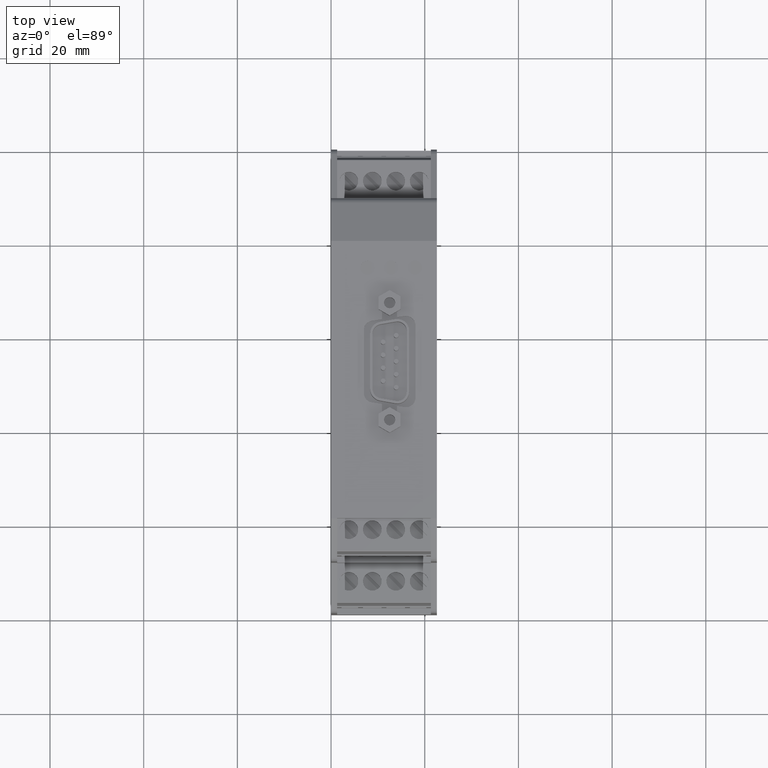
[diagram: clean part render]
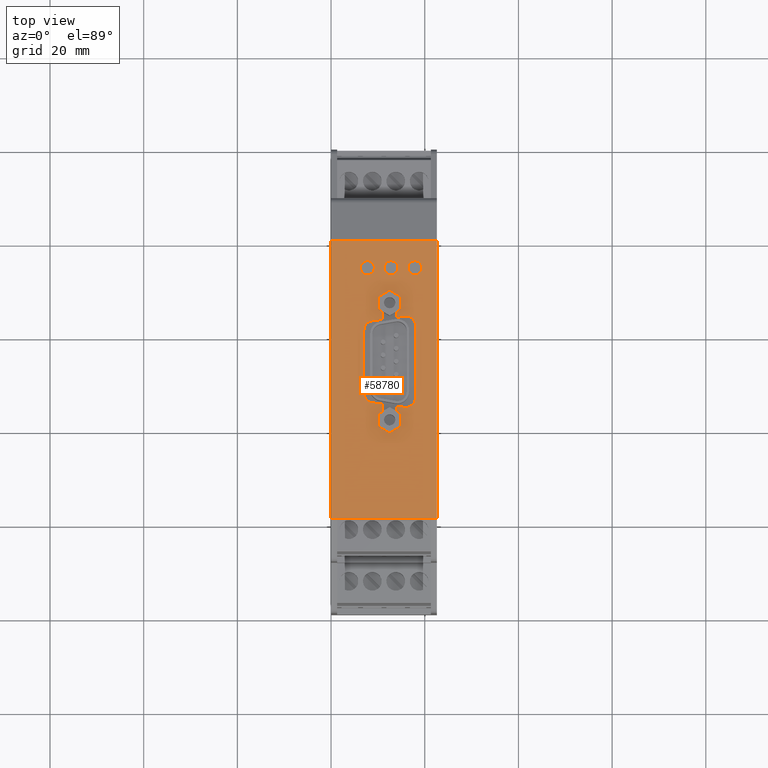
[diagram: same view with one face highlighted and labeled with its STEP entity id]
A machine part, top view. The second image highlights one B-rep face of the part: STEP entity #58780.
In plain terms, the highlighted planar face has unit normal (-0, 0, 1).
Its self-contained STEP definition (entity closure, byte-faithful):
#100=CARTESIAN_POINT('',(-29.6000000000285,107.000000000059,
-7.105427357601E-15));
#110=VERTEX_POINT('',#100);
#2990=CARTESIAN_POINT('',(29.6000000000141,107.000000000059,0.));
#3000=VERTEX_POINT('',#2990);
#3030=CARTESIAN_POINT('',(-1.39020883780511E-11,107.000000000059,
-3.5527136788005E-15));
#3040=DIRECTION('',(-1.,0.,-1.22460635382238E-16));
#3050=VECTOR('',#3040,1.);
#3060=LINE('',#3030,#3050);
#3070=EDGE_CURVE('',#3000,#110,#3060,.T.);
#7680=CARTESIAN_POINT('',(29.6000000000152,107.000000000059,22.6));
#7690=VERTEX_POINT('',#7680);
#7720=CARTESIAN_POINT('',(29.6000000000141,107.000000000059,26.4));
#7730=DIRECTION('',(2.46519032881566E-32,0.,-1.));
#7740=VECTOR('',#7730,1.);
#7750=LINE('',#7720,#7740);
#7760=EDGE_CURVE('',#7690,#3000,#7750,.T.);
#55510=CARTESIAN_POINT('',(-29.6000000000285,107.000000000059,22.6));
#55520=VERTEX_POINT('',#55510);
#55550=CARTESIAN_POINT('',(-1.39048559884107E-11,107.000000000059,22.6))
;
#55560=DIRECTION('',(1.,0.,0.));
#55570=VECTOR('',#55560,1.);
#55580=LINE('',#55550,#55570);
#55590=EDGE_CURVE('',#55520,#7690,#55580,.T.);
#55910=CARTESIAN_POINT('',(29.6000000000142,107.000000000059,22.6));
#55920=DIRECTION('',(-0.,1.,0.));
#55930=DIRECTION('',(1.,0.,0.));
#55940=AXIS2_PLACEMENT_3D('',#55910,#55920,#55930);
#55950=PLANE('',#55940);
#55960=CARTESIAN_POINT('',(25.9382032224687,107.000000000059,
24.4999999999999));
#55970=DIRECTION('',(0.499999999718561,0.,0.866025403946928));
#55980=VECTOR('',#55970,1.);
#55990=LINE('',#55960,#55980);
#56000=CARTESIAN_POINT('',(17.6532268663928,107.000000000059,
10.150000001));
#56010=VERTEX_POINT('',#56000);
#56020=CARTESIAN_POINT('',(19.0099999973928,107.000000000059,12.5));
#56030=VERTEX_POINT('',#56020);
#56040=EDGE_CURVE('',#56010,#56030,#55990,.T.);
#56050=ORIENTED_EDGE('',*,*,#56040,.T.);
#56060=CARTESIAN_POINT('',(-65.1900000000072,107.000000000059,
10.150000001));
#56070=DIRECTION('',(1.,0.,-3.08324751326383E-16));
#56080=VECTOR('',#56070,1.);
#56090=LINE('',#56060,#56080);
#56100=CARTESIAN_POINT('',(14.9667731333928,107.000000000059,
10.150000001));
#56110=VERTEX_POINT('',#56100);
#56120=EDGE_CURVE('',#56110,#56010,#56090,.T.);
#56130=ORIENTED_EDGE('',*,*,#56120,.T.);
#56140=CARTESIAN_POINT('',(6.68179677731701,107.000000000059,
24.4999999999999));
#56150=DIRECTION('',(0.499999999718559,0.,-0.866025403946929));
#56160=VECTOR('',#56150,1.);
#56170=LINE('',#56140,#56160);
#56180=CARTESIAN_POINT('',(14.533760432403,107.000000000059,
10.8999999999999));
#56190=VERTEX_POINT('',#56180);
#56200=EDGE_CURVE('',#56190,#56110,#56170,.T.);
#56210=ORIENTED_EDGE('',*,*,#56200,.T.);
#56220=CARTESIAN_POINT('',(-65.1900000000072,107.000000000059,
10.8999999999999));
#56230=DIRECTION('',(-1.,0.,3.08324751326383E-16));
#56240=VECTOR('',#56230,1.);
#56250=LINE('',#56220,#56240);
#56260=CARTESIAN_POINT('',(12.8517336735926,107.000000000059,
10.8999999999999));
#56270=VERTEX_POINT('',#56260);
#56280=EDGE_CURVE('',#56190,#56270,#56250,.T.);
#56290=ORIENTED_EDGE('',*,*,#56280,.F.);
#56300=CARTESIAN_POINT('',(14.7945908217902,107.000000000059,
24.4999999999999));
#56310=DIRECTION('',(-0.141421356618266,0.,-0.989949493606744));
#56320=VECTOR('',#56310,1.);
#56330=LINE('',#56300,#56320);
#56340=CARTESIAN_POINT('',(12.5398989995926,107.000000000059,
8.71715728799985));
#56350=VERTEX_POINT('',#56340);
#56360=EDGE_CURVE('',#56270,#56350,#56330,.T.);
#56370=ORIENTED_EDGE('',*,*,#56360,.F.);
#56380=CARTESIAN_POINT('',(10.5600000125926,107.000000000059,
8.99999999999985));
#56390=DIRECTION('',(1.66533453693774E-16,1.,-2.08166817117217E-17));
#56400=DIRECTION('',(1.,-1.66533453693774E-16,-3.08324751326383E-16));
#56410=AXIS2_PLACEMENT_3D('',#56380,#56390,#56400);
#56420=CIRCLE('',#56410,2.);
#56430=CARTESIAN_POINT('',(10.5600000125926,107.000000000059,
6.99999999999987));
#56440=VERTEX_POINT('',#56430);
#56450=EDGE_CURVE('',#56350,#56440,#56420,.T.);
#56460=ORIENTED_EDGE('',*,*,#56450,.F.);
#56470=CARTESIAN_POINT('',(-65.1900000000072,107.000000000059,
6.99999999999989));
#56480=DIRECTION('',(-1.,0.,3.08324751326383E-16));
#56490=VECTOR('',#56480,1.);
#56500=LINE('',#56470,#56490);
#56510=CARTESIAN_POINT('',(-2.93999998740738,107.000000000059,
6.99999999999988));
#56520=VERTEX_POINT('',#56510);
#56530=EDGE_CURVE('',#56440,#56520,#56500,.T.);
#56540=ORIENTED_EDGE('',*,*,#56530,.F.);
#56550=CARTESIAN_POINT('',(-2.9399999874074,107.000000000059,
8.99999999999986));
#56560=DIRECTION('',(-1.66533453693774E-16,-1.,2.08166817117217E-17));
#56570=DIRECTION('',(-1.,1.66533453693774E-16,3.08324751326383E-16));
#56580=AXIS2_PLACEMENT_3D('',#56550,#56560,#56570);
#56590=CIRCLE('',#56580,1.99999999999998);
#56600=CARTESIAN_POINT('',(-4.9198989744074,107.000000000059,
8.71715728799988));
#56610=VERTEX_POINT('',#56600);
#56620=EDGE_CURVE('',#56610,#56520,#56590,.T.);
#56630=ORIENTED_EDGE('',*,*,#56620,.T.);
#56640=CARTESIAN_POINT('',(-7.17459079660487,107.000000000059,
24.4999999999999));
#56650=DIRECTION('',(-0.141421356618259,0.,0.989949493606745));
#56660=VECTOR('',#56650,1.);
#56670=LINE('',#56640,#56660);
#56680=CARTESIAN_POINT('',(-5.23173364840739,107.000000000059,
10.8999999999999));
#56690=VERTEX_POINT('',#56680);
#56700=EDGE_CURVE('',#56610,#56690,#56670,.T.);
#56710=ORIENTED_EDGE('',*,*,#56700,.F.);
#56720=CARTESIAN_POINT('',(-65.1900000000072,107.000000000059,
10.8999999999999));
#56730=DIRECTION('',(-1.,0.,3.08324751326383E-16));
#56740=VECTOR('',#56730,1.);
#56750=LINE('',#56720,#56740);
#56760=CARTESIAN_POINT('',(-6.91376041981737,107.000000000059,
10.8999999999999));
#56770=VERTEX_POINT('',#56760);
#56780=EDGE_CURVE('',#56690,#56770,#56750,.T.);
#56790=ORIENTED_EDGE('',*,*,#56780,.F.);
#56800=CARTESIAN_POINT('',(0.93820323526861,107.000000000059,
24.4999999999999));
#56810=DIRECTION('',(0.499999999718559,0.,0.866025403946929));
#56820=VECTOR('',#56810,1.);
#56830=LINE('',#56800,#56820);
#56840=CARTESIAN_POINT('',(-7.34677312080719,107.000000000059,
10.150000001));
#56850=VERTEX_POINT('',#56840);
#56860=EDGE_CURVE('',#56850,#56770,#56830,.T.);
#56870=ORIENTED_EDGE('',*,*,#56860,.T.);
#56880=CARTESIAN_POINT('',(-65.1900000000072,107.000000000059,
10.150000001));
#56890=DIRECTION('',(1.,0.,-3.08324751326383E-16));
#56900=VECTOR('',#56890,1.);
#56910=LINE('',#56880,#56900);
#56920=CARTESIAN_POINT('',(-10.0332268538072,107.000000000059,
10.150000001));
#56930=VERTEX_POINT('',#56920);
#56940=EDGE_CURVE('',#56930,#56850,#56910,.T.);
#56950=ORIENTED_EDGE('',*,*,#56940,.T.);
#56960=CARTESIAN_POINT('',(-18.3182033649851,107.000000000059,
24.4999999999999));
#56970=DIRECTION('',(0.500000006738892,0.,-0.866025399893738));
#56980=VECTOR('',#56970,1.);
#56990=LINE('',#56960,#56980);
#57000=CARTESIAN_POINT('',(-11.3900000102072,107.000000000059,12.5));
#57010=VERTEX_POINT('',#57000);
#57020=EDGE_CURVE('',#57010,#56930,#56990,.T.);
#57030=ORIENTED_EDGE('',*,*,#57020,.T.);
#57040=CARTESIAN_POINT('',(-4.4617966554292,107.000000000059,
24.4999999999999));
#57050=DIRECTION('',(-0.500000006738894,0.,-0.866025399893736));
#57060=VECTOR('',#57050,1.);
#57070=LINE('',#57040,#57060);
#57080=CARTESIAN_POINT('',(-10.0332268538072,107.000000000059,
14.849999999));
#57090=VERTEX_POINT('',#57080);
#57100=EDGE_CURVE('',#57090,#57010,#57070,.T.);
#57110=ORIENTED_EDGE('',*,*,#57100,.T.);
#57120=CARTESIAN_POINT('',(-65.1900000000072,107.000000000059,
14.849999999));
#57130=DIRECTION('',(-1.,0.,3.08324751326383E-16));
#57140=VECTOR('',#57130,1.);
#57150=LINE('',#57120,#57140);
#57160=CARTESIAN_POINT('',(-7.34677312080721,107.000000000059,
14.849999999));
#57170=VERTEX_POINT('',#57160);
#57180=EDGE_CURVE('',#57170,#57090,#57150,.T.);
#57190=ORIENTED_EDGE('',*,*,#57180,.T.);
#57200=CARTESIAN_POINT('',(-12.9182032148831,107.000000000059,
24.4999999999999));
#57210=DIRECTION('',(-0.499999999718561,0.,0.866025403946928));
#57220=VECTOR('',#57210,1.);
#57230=LINE('',#57200,#57220);
#57240=CARTESIAN_POINT('',(-6.91376041981725,107.000000000059,
14.0999999999999));
#57250=VERTEX_POINT('',#57240);
#57260=EDGE_CURVE('',#57250,#57170,#57230,.T.);
#57270=ORIENTED_EDGE('',*,*,#57260,.T.);
#57280=CARTESIAN_POINT('',(-65.1900000000072,107.000000000059,
14.0999999999999));
#57290=DIRECTION('',(1.,0.,-3.08324751326383E-16));
#57300=VECTOR('',#57290,1.);
#57310=LINE('',#57280,#57300);
#57320=CARTESIAN_POINT('',(-5.68887650540738,107.000000000059,
14.0999999999999));
#57330=VERTEX_POINT('',#57320);
#57340=EDGE_CURVE('',#57250,#57330,#57310,.T.);
#57350=ORIENTED_EDGE('',*,*,#57340,.F.);
#57360=CARTESIAN_POINT('',(-7.17459078652808,107.000000000059,
24.4999999999999));
#57370=DIRECTION('',(-0.1414213558088,0.,0.989949493722382));
#57380=VECTOR('',#57370,1.);
#57390=LINE('',#57360,#57380);
#57400=CARTESIAN_POINT('',(-5.91989897440739,107.000000000059,
15.7171572879999));
#57410=VERTEX_POINT('',#57400);
#57420=EDGE_CURVE('',#57330,#57410,#57390,.T.);
#57430=ORIENTED_EDGE('',*,*,#57420,.F.);
#57440=CARTESIAN_POINT('',(-3.93999998740875,107.000000000059,
15.9999999999998));
#57450=DIRECTION('',(-1.66533453693774E-16,-1.,2.08166817117217E-17));
#57460=DIRECTION('',(-1.,1.66533453693774E-16,3.08324751326383E-16));
#57470=AXIS2_PLACEMENT_3D('',#57440,#57450,#57460);
#57480=CIRCLE('',#57470,1.99999999999865);
#57490=CARTESIAN_POINT('',(-3.93999998740737,107.000000000059,
17.9999999999999));
#57500=VERTEX_POINT('',#57490);
#57510=EDGE_CURVE('',#57500,#57410,#57480,.T.);
#57520=ORIENTED_EDGE('',*,*,#57510,.T.);
#57530=CARTESIAN_POINT('',(-65.1900000000072,107.000000000059,
17.9999999999999));
#57540=DIRECTION('',(1.,0.,-3.08324751326383E-16));
#57550=VECTOR('',#57540,1.);
#57560=LINE('',#57530,#57550);
#57570=CARTESIAN_POINT('',(11.5600000125926,107.000000000059,
17.9999999999999));
#57580=VERTEX_POINT('',#57570);
#57590=EDGE_CURVE('',#57500,#57580,#57560,.T.);
#57600=ORIENTED_EDGE('',*,*,#57590,.F.);
#57610=CARTESIAN_POINT('',(11.5600000125926,107.000000000059,
15.9999999999998));
#57620=DIRECTION('',(-1.66533453693774E-16,-1.,2.08166817117217E-17));
#57630=DIRECTION('',(-1.,1.66533453693774E-16,3.08324751326383E-16));
#57640=AXIS2_PLACEMENT_3D('',#57610,#57620,#57630);
#57650=CIRCLE('',#57640,2.00000000000006);
#57660=CARTESIAN_POINT('',(13.539898999975,107.000000000059,
15.7171572879452));
#57670=VERTEX_POINT('',#57660);
#57680=EDGE_CURVE('',#57670,#57580,#57650,.T.);
#57690=ORIENTED_EDGE('',*,*,#57680,.T.);
#57700=CARTESIAN_POINT('',(14.7945908117134,107.000000000059,
24.4999999999999));
#57710=DIRECTION('',(-0.141421355808805,0.,-0.989949493722382));
#57720=VECTOR('',#57710,1.);
#57730=LINE('',#57700,#57720);
#57740=CARTESIAN_POINT('',(13.3088765305926,107.000000000059,
14.0999999999999));
#57750=VERTEX_POINT('',#57740);
#57760=EDGE_CURVE('',#57670,#57750,#57730,.T.);
#57770=ORIENTED_EDGE('',*,*,#57760,.F.);
#57780=CARTESIAN_POINT('',(-65.1900000000072,107.000000000059,
14.0999999999999));
#57790=DIRECTION('',(1.,0.,-3.08324751326383E-16));
#57800=VECTOR('',#57790,1.);
#57810=LINE('',#57780,#57800);
#57820=CARTESIAN_POINT('',(14.5337604324029,107.000000000059,
14.0999999999999));
#57830=VERTEX_POINT('',#57820);
#57840=EDGE_CURVE('',#57750,#57830,#57810,.T.);
#57850=ORIENTED_EDGE('',*,*,#57840,.F.);
#57860=CARTESIAN_POINT('',(20.5382032274687,107.000000000059,
24.4999999999999));
#57870=DIRECTION('',(-0.499999999718561,0.,-0.866025403946928));
#57880=VECTOR('',#57870,1.);
#57890=LINE('',#57860,#57880);
#57900=CARTESIAN_POINT('',(14.9667731333928,107.000000000059,
14.849999999));
#57910=VERTEX_POINT('',#57900);
#57920=EDGE_CURVE('',#57910,#57830,#57890,.T.);
#57930=ORIENTED_EDGE('',*,*,#57920,.T.);
#57940=CARTESIAN_POINT('',(-65.1900000000072,107.000000000059,
14.849999999));
#57950=DIRECTION('',(-1.,0.,3.08324751326383E-16));
#57960=VECTOR('',#57950,1.);
#57970=LINE('',#57940,#57960);
#57980=CARTESIAN_POINT('',(17.6532268663928,107.000000000059,
14.849999999));
#57990=VERTEX_POINT('',#57980);
#58000=EDGE_CURVE('',#57990,#57910,#57970,.T.);
#58010=ORIENTED_EDGE('',*,*,#58000,.T.);
#58020=CARTESIAN_POINT('',(12.081796772317,107.000000000059,
24.4999999999999));
#58030=DIRECTION('',(-0.499999999718559,0.,0.866025403946929));
#58040=VECTOR('',#58030,1.);
#58050=LINE('',#58020,#58040);
#58060=EDGE_CURVE('',#56030,#57990,#58050,.T.);
#58070=ORIENTED_EDGE('',*,*,#58060,.T.);
#58080=EDGE_LOOP('',(#58070,#58010,#57930,#57850,#57770,#57690,#57600,
#57520,#57430,#57350,#57270,#57190,#57110,#57030,#56950,#56870,#56790,
#56710,#56630,#56540,#56460,#56370,#56290,#56210,#56130,#56050));
#58090=FACE_BOUND('',#58080,.T.);
#58100=CARTESIAN_POINT('',(23.8699999999928,107.000000000059,12.82));
#58110=DIRECTION('',(0.,1.,0.));
#58120=DIRECTION('',(1.,0.,1.22460635382238E-16));
#58130=AXIS2_PLACEMENT_3D('',#58100,#58110,#58120);
#58140=CIRCLE('',#58130,1.5);
#58150=CARTESIAN_POINT('',(25.3699999999928,107.000000000059,12.82));
#58160=VERTEX_POINT('',#58150);
#58170=CARTESIAN_POINT('',(22.3699999999928,107.000000000059,12.82));
#58180=VERTEX_POINT('',#58170);
#58190=EDGE_CURVE('',#58160,#58180,#58140,.T.);
#58200=ORIENTED_EDGE('',*,*,#58190,.F.);
#58210=EDGE_CURVE('',#58180,#58160,#58140,.T.);
#58220=ORIENTED_EDGE('',*,*,#58210,.F.);
#58230=EDGE_LOOP('',(#58220,#58200));
#58240=FACE_BOUND('',#58230,.T.);
#58250=CARTESIAN_POINT('',(23.8699999999928,107.000000000059,17.9));
#58260=DIRECTION('',(0.,1.,0.));
#58270=DIRECTION('',(1.,0.,1.22460635382238E-16));
#58280=AXIS2_PLACEMENT_3D('',#58250,#58260,#58270);
#58290=CIRCLE('',#58280,1.5);
#58300=CARTESIAN_POINT('',(25.3699999999928,107.000000000059,17.9));
#58310=VERTEX_POINT('',#58300);
#58320=CARTESIAN_POINT('',(22.3699999999928,107.000000000059,17.9));
#58330=VERTEX_POINT('',#58320);
#58340=EDGE_CURVE('',#58310,#58330,#58290,.T.);
#58350=ORIENTED_EDGE('',*,*,#58340,.F.);
#58360=EDGE_CURVE('',#58330,#58310,#58290,.T.);
#58370=ORIENTED_EDGE('',*,*,#58360,.F.);
#58380=EDGE_LOOP('',(#58370,#58350));
#58390=FACE_BOUND('',#58380,.T.);
#58400=CARTESIAN_POINT('',(23.8699999999928,107.000000000059,7.74));
#58410=DIRECTION('',(0.,1.,0.));
#58420=DIRECTION('',(1.,0.,1.22460635382238E-16));
#58430=AXIS2_PLACEMENT_3D('',#58400,#58410,#58420);
#58440=CIRCLE('',#58430,1.5);
#58450=CARTESIAN_POINT('',(25.3699999999928,107.000000000059,7.74));
#58460=VERTEX_POINT('',#58450);
#58470=CARTESIAN_POINT('',(22.3699999999928,107.000000000059,7.74));
#58480=VERTEX_POINT('',#58470);
#58490=EDGE_CURVE('',#58460,#58480,#58440,.T.);
#58500=ORIENTED_EDGE('',*,*,#58490,.F.);
#58510=EDGE_CURVE('',#58480,#58460,#58440,.T.);
#58520=ORIENTED_EDGE('',*,*,#58510,.F.);
#58530=EDGE_LOOP('',(#58520,#58500));
#58540=FACE_BOUND('',#58530,.T.);
#58550=CARTESIAN_POINT('',(-29.6000000000285,107.000000000059,26.4));
#58560=DIRECTION('',(0.,0.,-1.));
#58570=VECTOR('',#58560,1.);
#58580=LINE('',#58550,#58570);
#58590=CARTESIAN_POINT('',(-29.5999999999387,107.000000000059,
21.3000000000003));
#58600=VERTEX_POINT('',#58590);
#58610=EDGE_CURVE('',#55520,#58600,#58580,.T.);
#58620=ORIENTED_EDGE('',*,*,#58610,.F.);
#58630=CARTESIAN_POINT('',(-29.5999999999387,107.000000000093,26.4));
#58640=DIRECTION('',(1.22460635382238E-16,4.70082336308815E-17,-1.));
#58650=VECTOR('',#58640,1.);
#58660=LINE('',#58630,#58650);
#58670=CARTESIAN_POINT('',(-29.5999999999387,107.000000000059,
1.30000000000028));
#58680=VERTEX_POINT('',#58670);
#58690=EDGE_CURVE('',#58600,#58680,#58660,.T.);
#58700=ORIENTED_EDGE('',*,*,#58690,.F.);
#58710=EDGE_CURVE('',#58680,#110,#58580,.T.);
#58720=ORIENTED_EDGE('',*,*,#58710,.F.);
#58730=ORIENTED_EDGE('',*,*,#3070,.T.);
#58740=ORIENTED_EDGE('',*,*,#7760,.T.);
#58750=ORIENTED_EDGE('',*,*,#55590,.T.);
#58760=EDGE_LOOP('',(#58750,#58740,#58730,#58720,#58700,#58620));
#58770=FACE_OUTER_BOUND('',#58760,.T.);
#58780=ADVANCED_FACE('',(#58090,#58240,#58390,#58540,#58770),#55950,.T.)
;